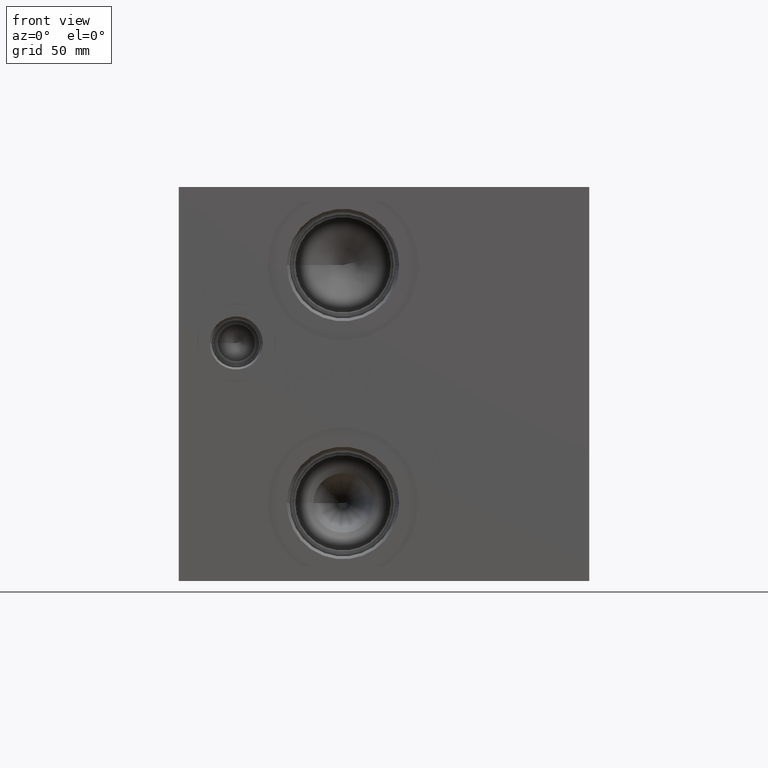
[diagram: clean part render]
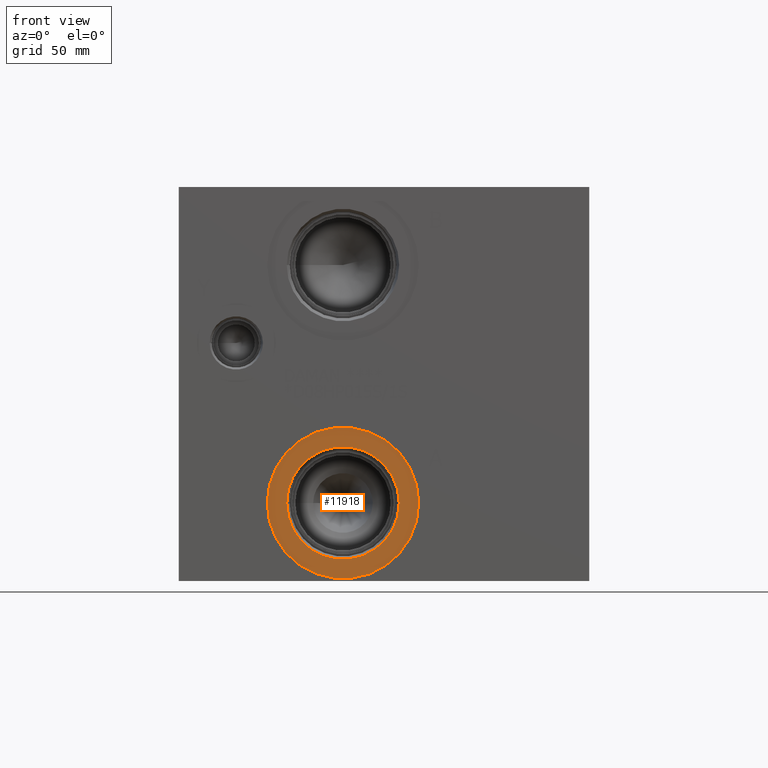
[diagram: same view with one face highlighted and labeled with its STEP entity id]
A machine part, front view. The second image highlights one B-rep face of the part: STEP entity #11918.
In plain terms, the highlighted planar face has unit normal (0, -1, 0).
Its self-contained STEP definition (entity closure, byte-faithful):
#321=CIRCLE('',#12588,29.2862);
#322=CIRCLE('',#12589,29.2862);
#323=CIRCLE('',#12590,21.7551);
#489=FACE_BOUND('',#2113,.T.);
#847=PLANE('',#12587);
#1420=FACE_OUTER_BOUND('',#2112,.T.);
#2112=EDGE_LOOP('',(#10451,#10452));
#2113=EDGE_LOOP('',(#10453));
#5698=VERTEX_POINT('',#20308);
#5699=VERTEX_POINT('',#20309);
#5700=VERTEX_POINT('',#20312);
#7321=EDGE_CURVE('',#5698,#5699,#321,.T.);
#7322=EDGE_CURVE('',#5699,#5698,#322,.T.);
#7323=EDGE_CURVE('',#5700,#5700,#323,.T.);
#10451=ORIENTED_EDGE('',*,*,#7321,.T.);
#10452=ORIENTED_EDGE('',*,*,#7322,.T.);
#10453=ORIENTED_EDGE('',*,*,#7323,.F.);
#11918=ADVANCED_FACE('',(#1420,#489),#847,.T.);
#12587=AXIS2_PLACEMENT_3D('',#20307,#14978,#14979);
#12588=AXIS2_PLACEMENT_3D('',#20310,#14980,#14981);
#12589=AXIS2_PLACEMENT_3D('',#20311,#14982,#14983);
#12590=AXIS2_PLACEMENT_3D('',#20313,#14984,#14985);
#14978=DIRECTION('center_axis',(0.,-1.,0.));
#14979=DIRECTION('ref_axis',(1.,0.,0.));
#14980=DIRECTION('center_axis',(0.,-1.,0.));
#14981=DIRECTION('ref_axis',(1.,0.,0.));
#14982=DIRECTION('center_axis',(0.,-1.,0.));
#14983=DIRECTION('ref_axis',(1.,0.,0.));
#14984=DIRECTION('center_axis',(0.,-1.,0.));
#14985=DIRECTION('ref_axis',(1.,0.,0.));
#20307=CARTESIAN_POINT('Origin',(63.5,0.7874,30.1752));
#20308=CARTESIAN_POINT('',(92.7862,0.7874,30.1752));
#20309=CARTESIAN_POINT('',(34.2138,0.7874,30.1752));
#20310=CARTESIAN_POINT('Origin',(63.5,0.7874,30.1752));
#20311=CARTESIAN_POINT('Origin',(63.5,0.7874,30.1752));
#20312=CARTESIAN_POINT('',(41.7449,0.7874,30.1752));
#20313=CARTESIAN_POINT('Origin',(63.5,0.7874,30.1752));